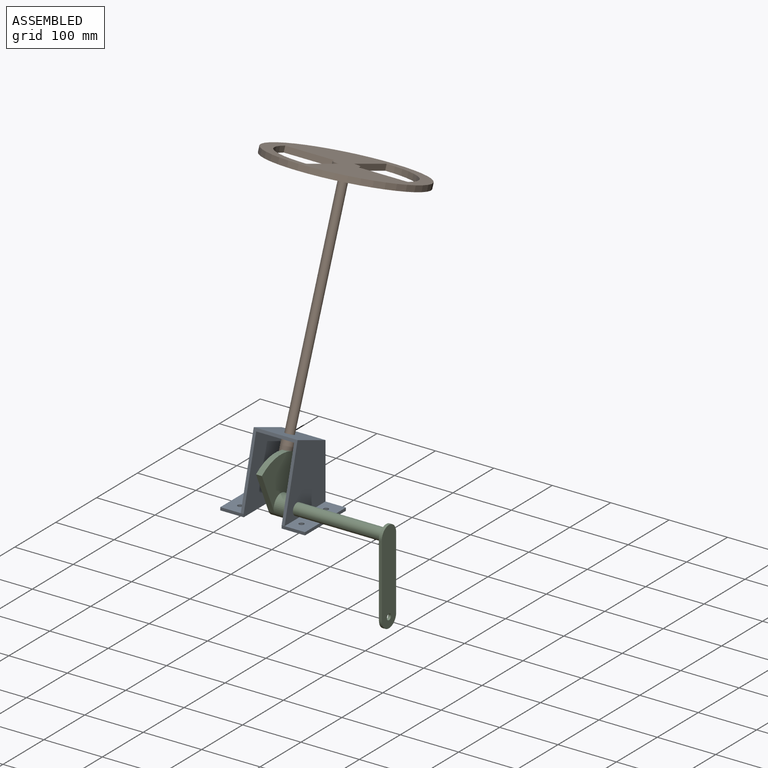
[diagram: assembled view]
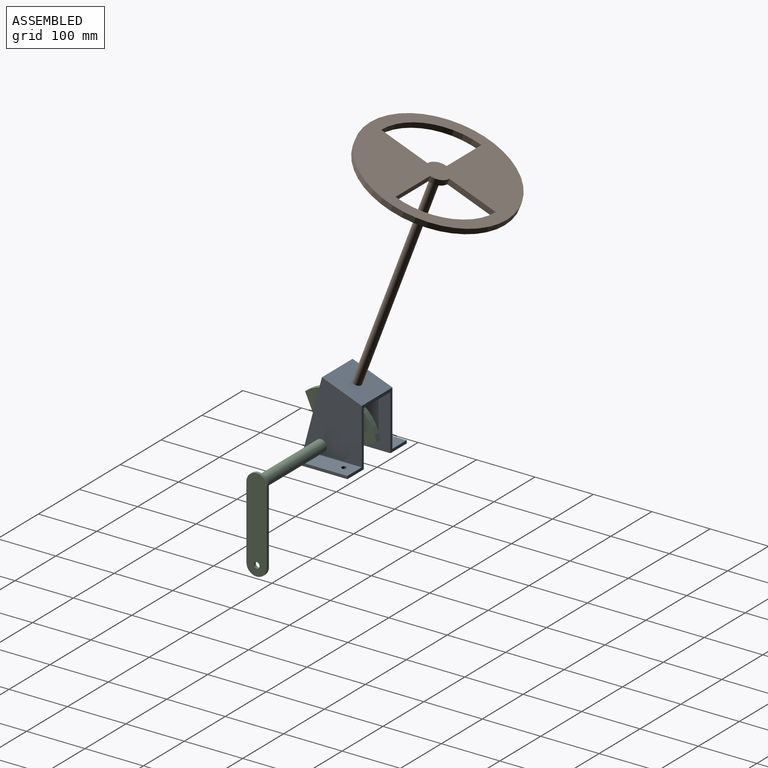
[diagram: assembled view, second angle]
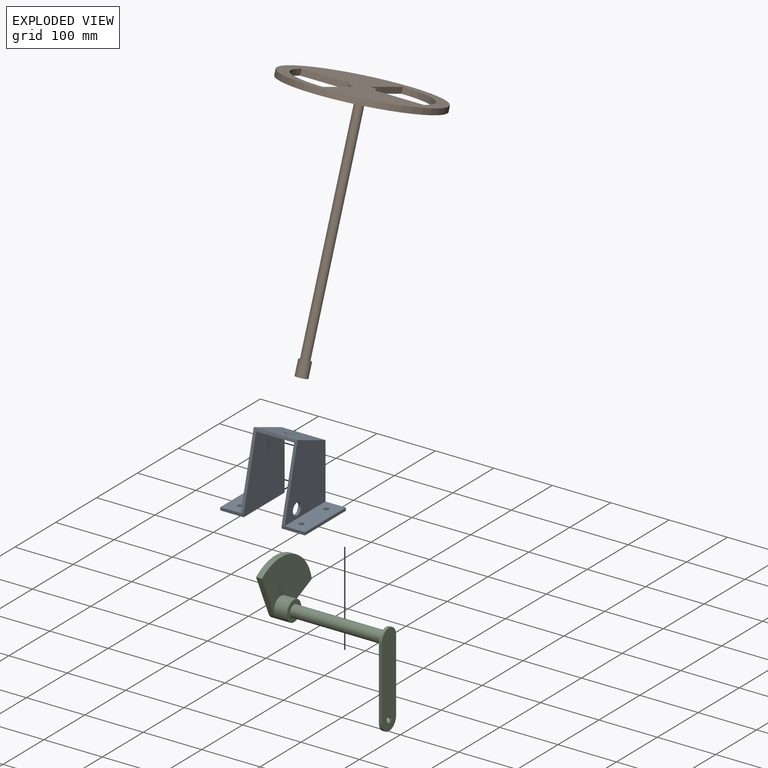
[diagram: exploded view]
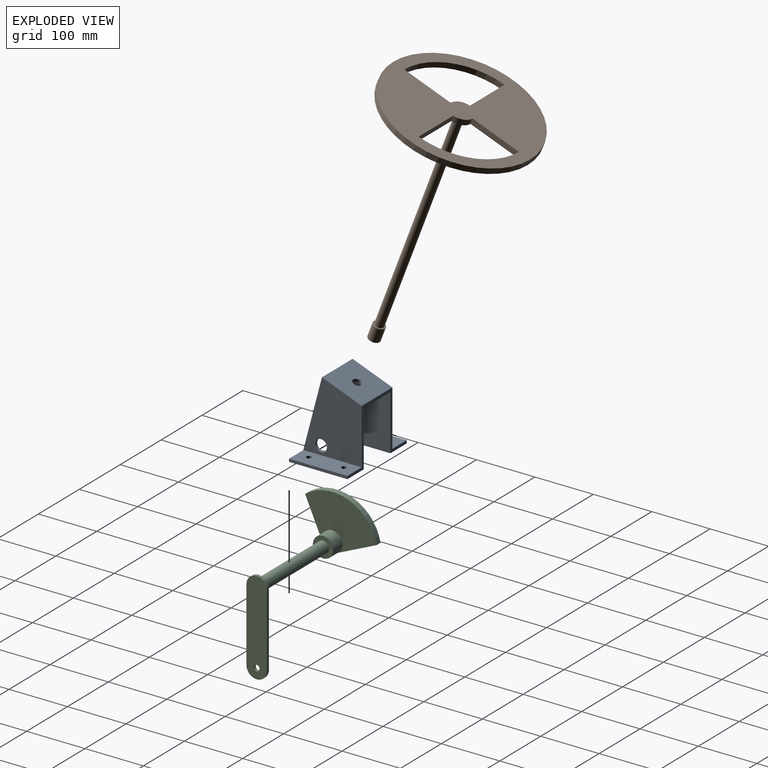
[diagram: exploded view, second angle]
ASSEMBLY  parts=3 mates=4
PART A: 22 faces, bbox 145x100x126 mm
  f0: plane 121.19x100mm, normal (1,0,0), area 9423.3mm2, adj f3,f4,f5,f6,f9
  f1: plane 100x35mm, normal (0,0,1), area 3386.5mm2, adj f2,f3,f4,f8,f20,f21
  f2: plane 100x5mm, normal (-1,0,0), area 500mm2, adj f1,f3,f4,f5
  f3: plane 40x5mm, normal (0,-1,0), area 200mm2, adj f0,f1,f2,f5,f6
  f4: plane 145x100mm, normal (0,1,0), area 1697.9mm2, adj f0,f1,f2,f5,f7,f8,f9,f10
  f5: plane 100x40mm, normal (0,0,-1), area 3886.5mm2, adj f0,f2,f3,f4,f20,f21
  f6: plane 121.05x75mm, normal (0,-0.97,0.25), area 1578.5mm2, adj f0,f3,f7,f8,f9,f10,f13,f15
  f7: plane 75x68.19mm, normal (0,0.36,0.93), area 5298.3mm2, adj f4,f6,f8,f15,f16
  f8: plane 121.05x100mm, normal (-1,0,0), area 9291.7mm2, adj f1,f4,f6,f7
  f9: plane 69.47x65mm, normal (0,-0.36,-0.93), area 4657.2mm2, adj f0,f4,f6,f10,f16
  f10: plane 121.19x100mm, normal (-1,0,0), area 9109.1mm2, adj f4,f6,f9,f13,f14,f17
  f11: plane 100x35mm, normal (0,0,1), area 3386.5mm2, adj f4,f12,f13,f15,f18,f19
  f12: plane 100x5mm, normal (1,0,0), area 500mm2, adj f4,f11,f13,f14
  f13: plane 40x5mm, normal (0,-1,0), area 200mm2, adj f6,f10,f11,f12,f14
  f14: plane 100x40mm, normal (0,0,-1), area 3886.5mm2, adj f4,f10,f12,f13,f18,f19
  f15: plane 121.05x100mm, normal (1,0,0), area 8977.5mm2, adj f4,f6,f7,f11,f17
  f16: cylinder r=7.5mm len=15.8mm, axis (0,0.36,0.93), area 235.6mm2, adj f7,f9
  f17: cylinder r=10mm len=20mm, axis (1,0,0), area 314.2mm2, adj f10,f15
  f18: cylinder r=4.25mm len=8.5mm, axis (0,0,-1), area 133.5mm2, adj f11,f14
  f19: cylinder r=4.25mm len=8.5mm, axis (0,0,-1), area 133.5mm2, adj f11,f14
  f20: cylinder r=4.25mm len=8.5mm, axis (0,0,-1), area 133.5mm2, adj f1,f5
  f21: cylinder r=4.25mm len=8.5mm, axis (0,0,-1), area 133.5mm2, adj f1,f5
PART B: 15 faces, bbox 250x276x440.5 mm
  f0: cylinder r=7.5mm len=365.01mm, axis (0,-0.36,-0.93), area 18142.7mm2, adj f3,f6
  f1: cylinder r=10mm len=30.49mm, axis (0,0.36,0.93), area 1570.8mm2, adj f2,f3
  f2: plane 20x18.68mm, normal (0,-0.36,-0.93), area 314.2mm2, adj f1
  f3: plane 20x18.68mm, normal (0,0.36,0.93), area 137.4mm2, adj f0,f1
  f4: cylinder r=125mm len=250mm, axis (0,-0.36,-0.93), area 7854mm2, adj f5,f6
  f5: plane 250x233.54mm, normal (0,0.36,0.93), area 32397.7mm2, adj f4,f7,f8,f9,f10,f11,f12,f13
  f6: plane 250x233.54mm, normal (0,-0.36,-0.93), area 32221mm2, adj f0,f4,f7,f8,f9,f10,f11,f12
  f7: cylinder r=105mm len=105mm, axis (0,0.36,0.93), area 1649.3mm2, adj f5,f6,f8,f9
  f8: plane 85x9.34mm, normal (0,-0.93,0.36), area 850mm2, adj f5,f6,f7,f10
  f9: plane 82.97x39.67mm, normal (-1,0,0), area 850mm2, adj f5,f6,f7,f10
  f10: cylinder r=20mm len=22.25mm, axis (0,0.36,0.93), area 314.2mm2, adj f5,f6,f8,f9
  f11: plane 85x9.34mm, normal (0,0.93,-0.36), area 850mm2, adj f5,f6,f12,f13
  f12: cylinder r=20mm len=22.25mm, axis (0,0.36,0.93), area 314.2mm2, adj f5,f6,f11,f14
  f13: cylinder r=105mm len=105mm, axis (0,0.36,0.93), area 1649.3mm2, adj f5,f6,f11,f14
  f14: plane 82.97x39.67mm, normal (1,0,0), area 850mm2, adj f5,f6,f12,f13
PART C: 15 faces, bbox 195x122.2x219.5 mm
  f0: cylinder r=10mm len=157.5mm, axis (1,0,0), area 9896mm2, adj f7,f8
  f1: plane 125x5mm, normal (0,1,0), area 625mm2, adj f2,f4,f6,f7
  f2: cylinder r=17.5mm len=35mm, axis (-1,0,0), area 274.9mm2, adj f1,f3,f6,f7
  f3: plane 125x5mm, normal (0,-1,0), area 625mm2, adj f2,f4,f6,f7
  f4: cylinder r=17.5mm len=35mm, axis (-1,0,0), area 274.9mm2, adj f1,f3,f6,f7
  f5: cylinder r=5mm len=10mm, axis (-1,0,0), area 157.1mm2, adj f6,f7
  f6: plane 160x35mm, normal (1,0,0), area 5258.6mm2, adj f1,f2,f3,f4,f5
  f7: plane 160x35mm, normal (-1,0,0), area 4944.4mm2, adj f0,f1,f2,f3,f4,f5
  f8: plane 35x35mm, normal (1,0,0), area 648mm2, adj f0,f12
  f9: plane 122.2x94.51mm, normal (-1,0,0), area 7571.1mm2, adj f10,f11,f12,f13
  f10: cylinder r=77.01mm len=122.2mm, axis (-1,0,0), area 1562.8mm2, adj f9,f11,f13,f14
  f11: plane 68.47x30.62mm, normal (0,0.41,-0.91), area 750mm2, adj f9,f10,f12,f14
  f12: cylinder r=17.5mm len=35mm, axis (-1,0,0), area 2748.9mm2, adj f8,f9,f11,f13,f14
  f13: plane 68.47x30.62mm, normal (0,-0.91,-0.41), area 750mm2, adj f9,f10,f12,f14
  f14: plane 122.2x92.99mm, normal (1,0,0), area 6608.9mm2, adj f10,f11,f12,f13
PLACE A t=(-72.85,-50.27,-63.12)mm fixed
PLACE B rot(axis=(0.53,0.72,-0.45),0deg) t=(-72.85,-50.27,-63.12)mm
PLACE C t=(-72.85,-50.27,-63.12)mm
MATE cylindrical C.f2 <-> A.f17  axis (1,0,0) through (32.15,-19.9,-43.12)mm
MATE revolute B.f7 <-> A.f16  axis (0,0.36,0.93) through (-0.35,13.85,45.24)mm
MATE revolute A.f17 <-> C.f2  axis (-1,0,0) through (32.15,-19.9,-43.12)mm
MATE cylindrical B.f7 <-> A.f16  axis (0,0.36,0.93) through (-0.35,13.85,45.24)mm
